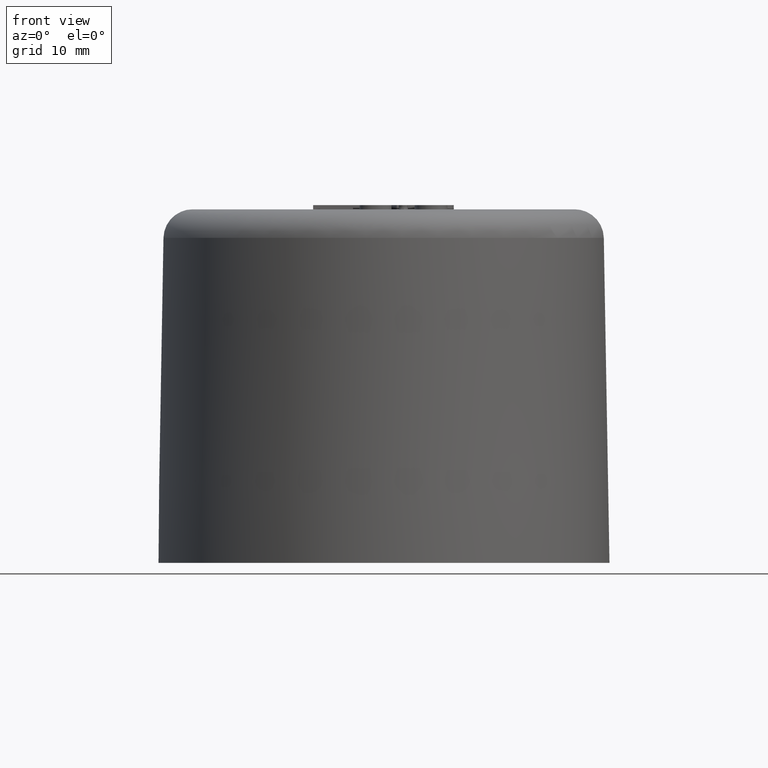
[diagram: clean part render]
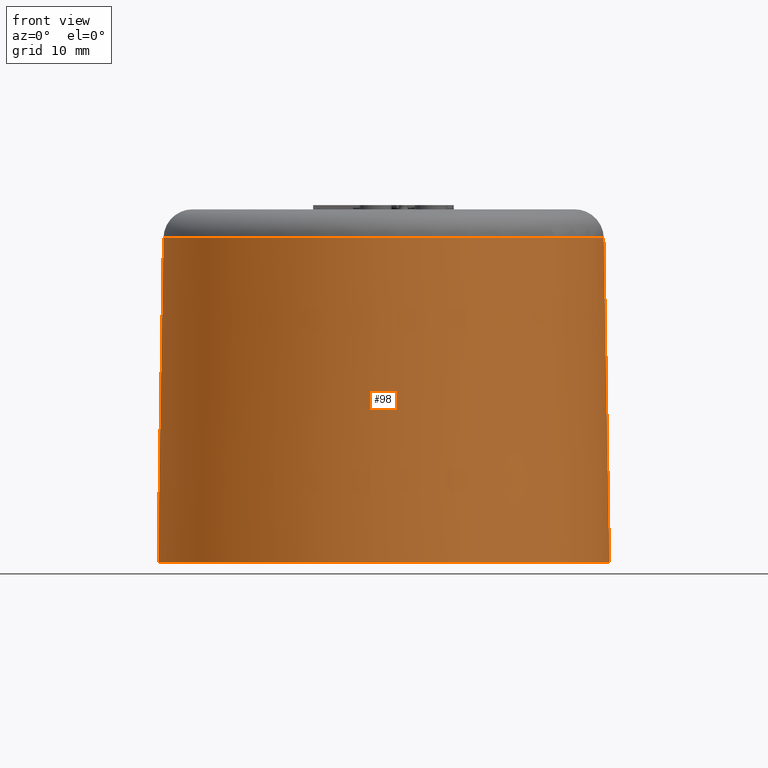
[diagram: same view with one face highlighted and labeled with its STEP entity id]
A machine part, front view. The second image highlights one B-rep face of the part: STEP entity #98.
In plain terms, the highlighted conical surface has half-angle 1 deg.
Its self-contained STEP definition (entity closure, byte-faithful):
#98 = ADVANCED_FACE( '', ( #212, #213 ), #214, .T. );
#212 = FACE_BOUND( '', #388, .T. );
#213 = FACE_OUTER_BOUND( '', #389, .T. );
#214 = CONICAL_SURFACE( '', #390, 27.1494821186741, 0.0174532925199433 );
#388 = EDGE_LOOP( '', ( #775 ) );
#389 = EDGE_LOOP( '', ( #776 ) );
#390 = AXIS2_PLACEMENT_3D( '', #777, #778, #779 );
#775 = ORIENTED_EDGE( '', *, *, #1264, .F. );
#776 = ORIENTED_EDGE( '', *, *, #1210, .T. );
#777 = CARTESIAN_POINT( '', ( 0.000000000000000, 0.000000000000000, 0.000000000000000 ) );
#778 = DIRECTION( '', ( 6.12303176911189E-017, 0.000000000000000, -1.00000000000000 ) );
#779 = DIRECTION( '', ( -1.00000000000000, 0.000000000000000, -6.12303176911189E-017 ) );
#1210 = EDGE_CURVE( '', #1423, #1423, #1424, .T. );
#1264 = EDGE_CURVE( '', #1517, #1517, #1518, .T. );
#1423 = VERTEX_POINT( '', #1830 );
#1424 = CIRCLE( '', #1831, 27.1494821186741 );
#1517 = VERTEX_POINT( '', #2168 );
#1518 = CIRCLE( '', #2169, 26.4676683713673 );
#1830 = CARTESIAN_POINT( '', ( 27.1494821186741, 0.000000000000000, 1.66237141527577E-015 ) );
#1831 = AXIS2_PLACEMENT_3D( '', #2350, #2351, #2352 );
#2168 = CARTESIAN_POINT( '', ( 26.4676683713673, 0.000000000000000, 39.0610834225305 ) );
#2169 = AXIS2_PLACEMENT_3D( '', #2378, #2379, #2380 );
#2350 = CARTESIAN_POINT( '', ( 0.000000000000000, 0.000000000000000, 0.000000000000000 ) );
#2351 = DIRECTION( '', ( -6.12303176911189E-017, 0.000000000000000, 1.00000000000000 ) );
#2352 = DIRECTION( '', ( 1.00000000000000, 0.000000000000000, 6.12303176911189E-017 ) );
#2378 = CARTESIAN_POINT( '', ( -2.39172254732084E-015, 0.000000000000000, 39.0610834225305 ) );
#2379 = DIRECTION( '', ( -6.12303176911189E-017, 0.000000000000000, 1.00000000000000 ) );
#2380 = DIRECTION( '', ( 1.00000000000000, 0.000000000000000, 6.12303176911189E-017 ) );